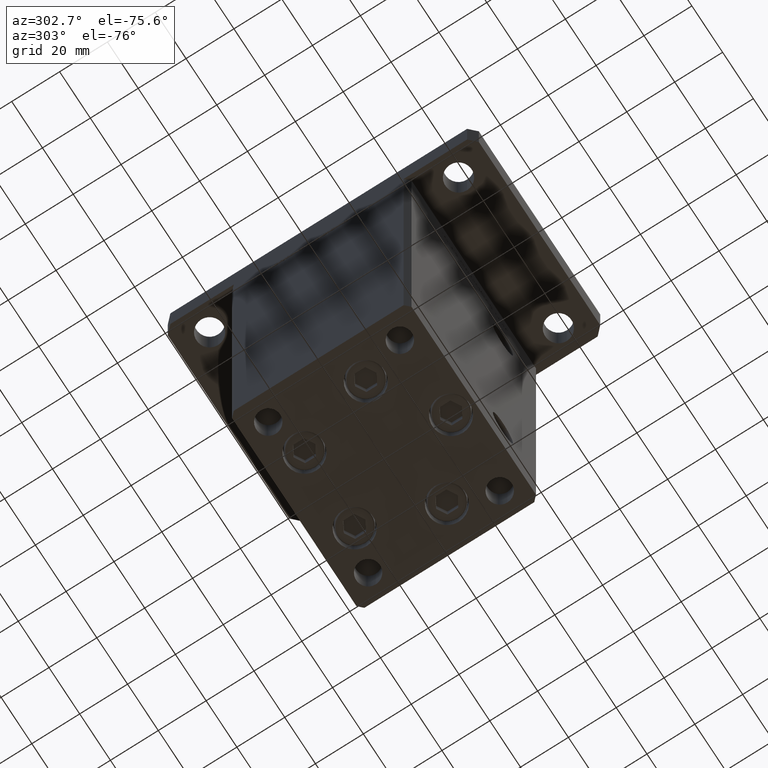
[diagram: clean part render]
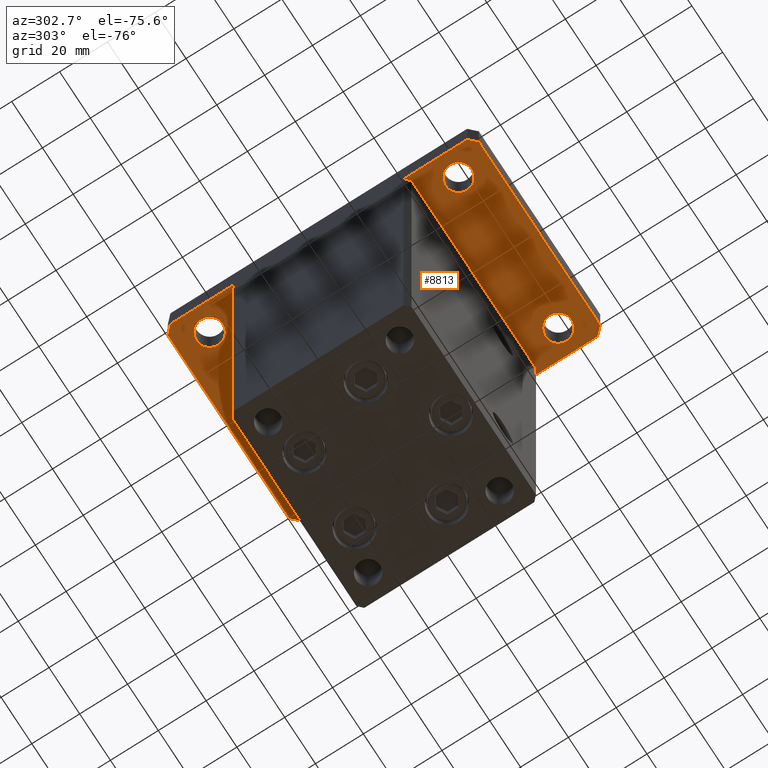
[diagram: same view with one face highlighted and labeled with its STEP entity id]
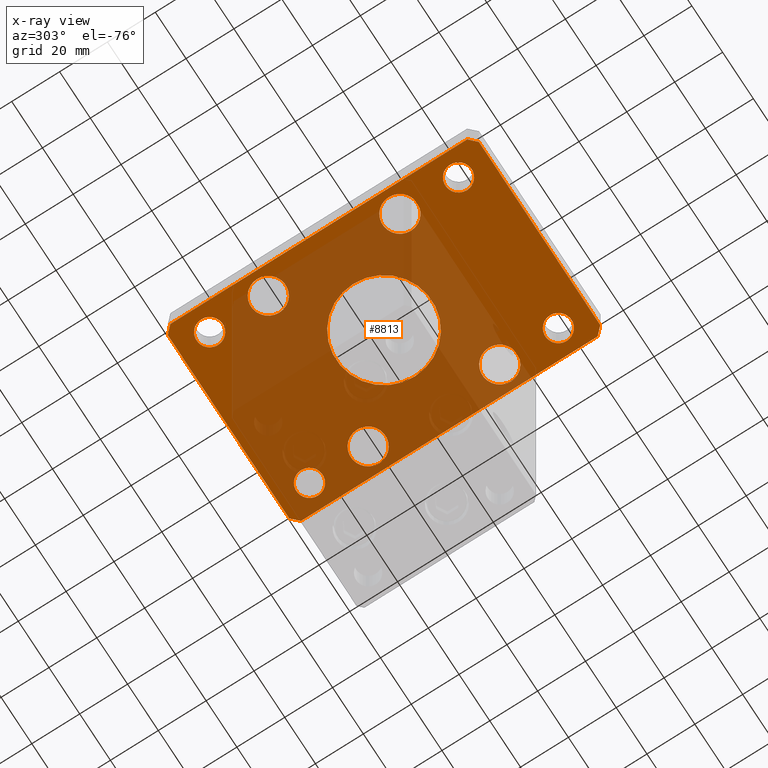
[diagram: x-ray of the same camera — body ghosted, the highlighted face saturated]
A machine part, auxiliary view. The second image highlights one B-rep face of the part: STEP entity #8813.
The next image is the same camera in x-ray: the body ghosted, the highlighted face saturated — about 61% of this face is hidden behind the body in this view.
In plain terms, the highlighted planar face has unit normal (0, 0, 1).
Its self-contained STEP definition (entity closure, byte-faithful):
#134 = DIRECTION ( 'NONE',  ( 1.000000000000000000, 0.000000000000000000, 0.000000000000000000 ) ) ;
#331 = VERTEX_POINT ( 'NONE', #53057 ) ;
#430 = VERTEX_POINT ( 'NONE', #1483 ) ;
#678 = VECTOR ( 'NONE', #45054, 1000.000000000000000 ) ;
#690 = EDGE_CURVE ( 'NONE', #32757, #8125, #31821, .T. ) ;
#725 = CARTESIAN_POINT ( 'NONE',  ( 39.50000000000001421, -64.99999999999988631, 0.000000000000000000 ) ) ;
#1048 = AXIS2_PLACEMENT_3D ( 'NONE', #25589, #42103, #4969 ) ;
#1280 = ORIENTED_EDGE ( 'NONE', *, *, #42246, .F. ) ;
#1483 = CARTESIAN_POINT ( 'NONE',  ( 39.50000000000002842, 65.00000000000002842, 0.000000000000000000 ) ) ;
#1509 = VERTEX_POINT ( 'NONE', #42147 ) ;
#2263 = FACE_BOUND ( 'NONE', #39259, .T. ) ;
#2525 = ORIENTED_EDGE ( 'NONE', *, *, #50738, .T. ) ;
#2554 = AXIS2_PLACEMENT_3D ( 'NONE', #4193, #36207, #52762 ) ;
#2556 = LINE ( 'NONE', #14218, #23423 ) ;
#2634 = CARTESIAN_POINT ( 'NONE',  ( -39.75000000000000000, -27.50000000000000000, 0.000000000000000000 ) ) ;
#2687 = ORIENTED_EDGE ( 'NONE', *, *, #24503, .T. ) ;
#3317 = LINE ( 'NONE', #19880, #678 ) ;
#3707 = DIRECTION ( 'NONE',  ( 0.000000000000000000, 0.000000000000000000, 1.000000000000000000 ) ) ;
#3758 = DIRECTION ( 'NONE',  ( 0.000000000000000000, 0.000000000000000000, -1.000000000000000000 ) ) ;
#4193 = CARTESIAN_POINT ( 'NONE',  ( 32.50000000000000000, 27.50000000000000000, 0.000000000000000000 ) ) ;
#4607 = CARTESIAN_POINT ( 'NONE',  ( -20.00000000000000000, 0.000000000000000000, 0.000000000000000000 ) ) ;
#4910 = VERTEX_POINT ( 'NONE', #19068 ) ;
#4969 = DIRECTION ( 'NONE',  ( 1.000000000000000000, 0.000000000000000000, 0.000000000000000000 ) ) ;
#5033 = ORIENTED_EDGE ( 'NONE', *, *, #16510, .T. ) ;
#5078 = EDGE_LOOP ( 'NONE', ( #35044, #8000 ) ) ;
#5131 = ORIENTED_EDGE ( 'NONE', *, *, #17590, .T. ) ;
#5352 = CIRCLE ( 'NONE', #33920, 7.249999999999999112 ) ;
#5522 = CARTESIAN_POINT ( 'NONE',  ( 0.000000000000000000, 0.000000000000000000, 0.000000000000000000 ) ) ;
#6024 = VERTEX_POINT ( 'NONE', #16299 ) ;
#6394 = VERTEX_POINT ( 'NONE', #41781 ) ;
#6704 = AXIS2_PLACEMENT_3D ( 'NONE', #10692, #35367, #47844 ) ;
#6883 = DIRECTION ( 'NONE',  ( -0.7071067811865417996, 0.7071067811865532349, 0.000000000000000000 ) ) ;
#6981 = EDGE_CURVE ( 'NONE', #430, #26760, #3317, .T. ) ;
#7316 = EDGE_LOOP ( 'NONE', ( #33860, #44421 ) ) ;
#7590 = CARTESIAN_POINT ( 'NONE',  ( 25.25000000000000000, -27.50000000000000000, 0.000000000000000000 ) ) ;
#7625 = ORIENTED_EDGE ( 'NONE', *, *, #15574, .F. ) ;
#7893 = CIRCLE ( 'NONE', #17559, 5.499999999999994671 ) ;
#7979 = CIRCLE ( 'NONE', #1048, 7.249999999999999112 ) ;
#8000 = ORIENTED_EDGE ( 'NONE', *, *, #11899, .T. ) ;
#8125 = VERTEX_POINT ( 'NONE', #4607 ) ;
#8534 = CARTESIAN_POINT ( 'NONE',  ( 32.49999999999997868, -52.00000000000000711, 0.000000000000000000 ) ) ;
#8789 = FACE_BOUND ( 'NONE', #7316, .T. ) ;
#8795 = VECTOR ( 'NONE', #36442, 1000.000000000000000 ) ;
#8813 = ADVANCED_FACE ( 'NONE', ( #31803, #11178, #2263, #19610, #18817, #23680, #40188, #8789, #9320, #34007 ), #33740, .F. ) ;
#9124 = CARTESIAN_POINT ( 'NONE',  ( -32.49999999999997868, -52.00000000000000711, 0.000000000000000000 ) ) ;
#9178 = DIRECTION ( 'NONE',  ( 0.000000000000000000, 0.000000000000000000, 1.000000000000000000 ) ) ;
#9308 = DIRECTION ( 'NONE',  ( 0.000000000000000000, 0.000000000000000000, 1.000000000000000000 ) ) ;
#9320 = FACE_BOUND ( 'NONE', #35638, .T. ) ;
#9485 = VERTEX_POINT ( 'NONE', #725 ) ;
#9535 = CIRCLE ( 'NONE', #32078, 5.499999999999994671 ) ;
#9716 = CARTESIAN_POINT ( 'NONE',  ( -39.75000000000000711, 27.50000000000000000, 0.000000000000000000 ) ) ;
#9767 = AXIS2_PLACEMENT_3D ( 'NONE', #46856, #9178, #51208 ) ;
#9776 = DIRECTION ( 'NONE',  ( 0.000000000000000000, 0.000000000000000000, 1.000000000000000000 ) ) ;
#10617 = DIRECTION ( 'NONE',  ( 0.000000000000000000, 1.000000000000000000, 0.000000000000000000 ) ) ;
#10692 = CARTESIAN_POINT ( 'NONE',  ( 0.000000000000000000, 0.000000000000000000, 0.000000000000000000 ) ) ;
#10778 = LINE ( 'NONE', #47111, #47794 ) ;
#10847 = ORIENTED_EDGE ( 'NONE', *, *, #12930, .F. ) ;
#11178 = FACE_OUTER_BOUND ( 'NONE', #24397, .T. ) ;
#11181 = CARTESIAN_POINT ( 'NONE',  ( -39.50000000000000000, -65.00000000000000000, 0.000000000000000000 ) ) ;
#11189 = DIRECTION ( 'NONE',  ( 0.000000000000000000, 0.000000000000000000, 1.000000000000000000 ) ) ;
#11642 = CARTESIAN_POINT ( 'NONE',  ( -27.00000000000000711, 52.00000000000000000, 0.000000000000000000 ) ) ;
#11899 = EDGE_CURVE ( 'NONE', #37040, #42308, #44172, .T. ) ;
#11963 = ORIENTED_EDGE ( 'NONE', *, *, #16030, .T. ) ;
#12095 = DIRECTION ( 'NONE',  ( 1.000000000000000000, 0.000000000000000000, 0.000000000000000000 ) ) ;
#12496 = CIRCLE ( 'NONE', #39329, 5.499999999999991118 ) ;
#12930 = EDGE_CURVE ( 'NONE', #4910, #20563, #21387, .T. ) ;
#13854 = CARTESIAN_POINT ( 'NONE',  ( -32.50000000000000711, 27.50000000000000000, 0.000000000000000000 ) ) ;
#14047 = DIRECTION ( 'NONE',  ( 0.000000000000000000, 0.000000000000000000, 1.000000000000000000 ) ) ;
#14129 = DIRECTION ( 'NONE',  ( 1.000000000000000000, 0.000000000000000000, 0.000000000000000000 ) ) ;
#14218 = CARTESIAN_POINT ( 'NONE',  ( 42.50000000000000000, 62.00000000000000711, 0.000000000000000000 ) ) ;
#14307 = DIRECTION ( 'NONE',  ( -0.7071067811865466846, -0.7071067811865483499, 0.000000000000000000 ) ) ;
#15193 = EDGE_CURVE ( 'NONE', #26760, #51276, #10778, .T. ) ;
#15203 = CARTESIAN_POINT ( 'NONE',  ( 42.50000000000000000, -61.99999999999988631, 0.000000000000000000 ) ) ;
#15574 = EDGE_CURVE ( 'NONE', #51276, #4910, #20455, .T. ) ;
#15655 = EDGE_CURVE ( 'NONE', #48986, #22883, #39107, .T. ) ;
#15804 = VECTOR ( 'NONE', #46730, 1000.000000000000000 ) ;
#15945 = EDGE_CURVE ( 'NONE', #20592, #6024, #5352, .T. ) ;
#16030 = EDGE_CURVE ( 'NONE', #6394, #1509, #22674, .T. ) ;
#16299 = CARTESIAN_POINT ( 'NONE',  ( 39.75000000000000000, 27.50000000000000000, 0.000000000000000000 ) ) ;
#16384 = CARTESIAN_POINT ( 'NONE',  ( -32.50000000000000000, 52.00000000000000000, 0.000000000000000000 ) ) ;
#16510 = EDGE_CURVE ( 'NONE', #35476, #37041, #7979, .T. ) ;
#16967 = CIRCLE ( 'NONE', #18682, 7.249999999999999112 ) ;
#17214 = DIRECTION ( 'NONE',  ( 0.000000000000000000, 0.000000000000000000, 1.000000000000000000 ) ) ;
#17449 = CIRCLE ( 'NONE', #51238, 5.499999999999994671 ) ;
#17559 = AXIS2_PLACEMENT_3D ( 'NONE', #16384, #9308, #38048 ) ;
#17590 = EDGE_CURVE ( 'NONE', #43387, #31989, #7893, .T. ) ;
#17652 = DIRECTION ( 'NONE',  ( 1.000000000000000000, 0.000000000000000000, 0.000000000000000000 ) ) ;
#17854 = EDGE_CURVE ( 'NONE', #32839, #331, #46108, .T. ) ;
#18030 = VECTOR ( 'NONE', #10617, 1000.000000000000000 ) ;
#18615 = EDGE_CURVE ( 'NONE', #20563, #9485, #29670, .T. ) ;
#18616 = DIRECTION ( 'NONE',  ( 0.000000000000000000, 0.000000000000000000, 1.000000000000000000 ) ) ;
#18682 = AXIS2_PLACEMENT_3D ( 'NONE', #13854, #26066, #14129 ) ;
#18817 = FACE_BOUND ( 'NONE', #52825, .T. ) ;
#18890 = CARTESIAN_POINT ( 'NONE',  ( 32.50000000000000000, -27.50000000000000000, 0.000000000000000000 ) ) ;
#19068 = CARTESIAN_POINT ( 'NONE',  ( -42.49999999999999289, -62.00000000000001421, 0.000000000000000000 ) ) ;
#19610 = FACE_BOUND ( 'NONE', #50780, .T. ) ;
#19820 = CARTESIAN_POINT ( 'NONE',  ( 27.00000000000001421, 51.99999999999999289, 0.000000000000000000 ) ) ;
#19880 = CARTESIAN_POINT ( 'NONE',  ( 39.50000000000002842, 65.00000000000002842, 0.000000000000000000 ) ) ;
#20149 = CARTESIAN_POINT ( 'NONE',  ( -39.50000000000003553, 65.00000000000000000, 0.000000000000000000 ) ) ;
#20455 = LINE ( 'NONE', #36705, #8795 ) ;
#20563 = VERTEX_POINT ( 'NONE', #11181 ) ;
#20576 = DIRECTION ( 'NONE',  ( 0.000000000000000000, 0.000000000000000000, 1.000000000000000000 ) ) ;
#20592 = VERTEX_POINT ( 'NONE', #41511 ) ;
#20808 = AXIS2_PLACEMENT_3D ( 'NONE', #33648, #9776, #38503 ) ;
#21011 = DIRECTION ( 'NONE',  ( 1.000000000000000000, 0.000000000000000000, -0.000000000000000000 ) ) ;
#21387 = LINE ( 'NONE', #50403, #37283 ) ;
#21533 = DIRECTION ( 'NONE',  ( 0.000000000000000000, 0.000000000000000000, 1.000000000000000000 ) ) ;
#22313 = DIRECTION ( 'NONE',  ( 0.000000000000000000, 0.000000000000000000, 1.000000000000000000 ) ) ;
#22674 = CIRCLE ( 'NONE', #28724, 5.499999999999994671 ) ;
#22766 = CARTESIAN_POINT ( 'NONE',  ( 39.75000000000000000, -27.50000000000000000, 0.000000000000000000 ) ) ;
#22883 = VERTEX_POINT ( 'NONE', #45626 ) ;
#23004 = DIRECTION ( 'NONE',  ( 0.000000000000000000, 0.000000000000000000, 1.000000000000000000 ) ) ;
#23270 = CARTESIAN_POINT ( 'NONE',  ( 32.50000000000000000, 27.50000000000000000, 0.000000000000000000 ) ) ;
#23423 = VECTOR ( 'NONE', #6883, 1000.000000000000000 ) ;
#23428 = DIRECTION ( 'NONE',  ( 1.000000000000000000, 0.000000000000000000, 0.000000000000000000 ) ) ;
#23578 = AXIS2_PLACEMENT_3D ( 'NONE', #18890, #18616, #47336 ) ;
#23680 = FACE_BOUND ( 'NONE', #41334, .T. ) ;
#23708 = ORIENTED_EDGE ( 'NONE', *, *, #18615, .F. ) ;
#24228 = ORIENTED_EDGE ( 'NONE', *, *, #40957, .F. ) ;
#24324 = CARTESIAN_POINT ( 'NONE',  ( -32.49999999999997868, -52.00000000000000711, 0.000000000000000000 ) ) ;
#24397 = EDGE_LOOP ( 'NONE', ( #23708, #10847, #7625, #51756, #36164, #30990, #1280, #45715 ) ) ;
#24503 = EDGE_CURVE ( 'NONE', #22883, #48986, #46183, .T. ) ;
#25589 = CARTESIAN_POINT ( 'NONE',  ( -32.50000000000000711, 27.50000000000000000, 0.000000000000000000 ) ) ;
#26066 = DIRECTION ( 'NONE',  ( 0.000000000000000000, 0.000000000000000000, 1.000000000000000000 ) ) ;
#26532 = ORIENTED_EDGE ( 'NONE', *, *, #690, .F. ) ;
#26719 = EDGE_CURVE ( 'NONE', #331, #32839, #12496, .T. ) ;
#26760 = VERTEX_POINT ( 'NONE', #20149 ) ;
#26889 = CARTESIAN_POINT ( 'NONE',  ( 20.00000000000000000, 2.449293598294706513E-15, 0.000000000000000000 ) ) ;
#26894 = CARTESIAN_POINT ( 'NONE',  ( 42.50000000000000000, 62.00000000000000711, 0.000000000000000000 ) ) ;
#27243 = AXIS2_PLACEMENT_3D ( 'NONE', #8534, #17214, #134 ) ;
#27322 = EDGE_CURVE ( 'NONE', #46452, #27636, #50602, .T. ) ;
#27397 = ORIENTED_EDGE ( 'NONE', *, *, #26719, .T. ) ;
#27636 = VERTEX_POINT ( 'NONE', #50504 ) ;
#27658 = CIRCLE ( 'NONE', #2554, 7.249999999999999112 ) ;
#28528 = AXIS2_PLACEMENT_3D ( 'NONE', #5522, #21533, #21011 ) ;
#28655 = ORIENTED_EDGE ( 'NONE', *, *, #46647, .T. ) ;
#28700 = DIRECTION ( 'NONE',  ( 1.000000000000000000, 0.000000000000000000, 0.000000000000000000 ) ) ;
#28724 = AXIS2_PLACEMENT_3D ( 'NONE', #24324, #3707, #12095 ) ;
#29062 = CIRCLE ( 'NONE', #42137, 5.499999999999998224 ) ;
#29225 = CARTESIAN_POINT ( 'NONE',  ( -38.00000000000000000, 52.00000000000000000, 0.000000000000000000 ) ) ;
#29231 = CARTESIAN_POINT ( 'NONE',  ( -32.50000000000000000, 52.00000000000000000, 0.000000000000000000 ) ) ;
#29349 = CARTESIAN_POINT ( 'NONE',  ( -25.25000000000000711, 27.50000000000000000, 0.000000000000000000 ) ) ;
#29670 = LINE ( 'NONE', #50003, #15804 ) ;
#30109 = CARTESIAN_POINT ( 'NONE',  ( -32.50000000000000000, -27.50000000000000000, 0.000000000000000000 ) ) ;
#30269 = DIRECTION ( 'NONE',  ( 0.000000000000000000, 0.000000000000000000, 1.000000000000000000 ) ) ;
#30586 = DIRECTION ( 'NONE',  ( 1.000000000000000000, 0.000000000000000000, 0.000000000000000000 ) ) ;
#30721 = CARTESIAN_POINT ( 'NONE',  ( 32.49999999999997868, -52.00000000000000711, 0.000000000000000000 ) ) ;
#30953 = LINE ( 'NONE', #47765, #18030 ) ;
#30990 = ORIENTED_EDGE ( 'NONE', *, *, #47926, .F. ) ;
#31724 = EDGE_CURVE ( 'NONE', #37041, #35476, #16967, .T. ) ;
#31803 = FACE_BOUND ( 'NONE', #49446, .T. ) ;
#31821 = CIRCLE ( 'NONE', #6704, 20.00000000000000000 ) ;
#31989 = VERTEX_POINT ( 'NONE', #11642 ) ;
#32078 = AXIS2_PLACEMENT_3D ( 'NONE', #9124, #30269, #33276 ) ;
#32757 = VERTEX_POINT ( 'NONE', #26889 ) ;
#32839 = VERTEX_POINT ( 'NONE', #19820 ) ;
#32896 = LINE ( 'NONE', #49426, #50387 ) ;
#33276 = DIRECTION ( 'NONE',  ( 1.000000000000000000, 0.000000000000000000, 0.000000000000000000 ) ) ;
#33648 = CARTESIAN_POINT ( 'NONE',  ( 32.50000000000000000, -27.50000000000000000, 0.000000000000000000 ) ) ;
#33740 = PLANE ( 'NONE',  #28528 ) ;
#33860 = ORIENTED_EDGE ( 'NONE', *, *, #15945, .T. ) ;
#33920 = AXIS2_PLACEMENT_3D ( 'NONE', #23270, #23004, #48196 ) ;
#34007 = FACE_BOUND ( 'NONE', #53528, .T. ) ;
#34039 = EDGE_CURVE ( 'NONE', #27636, #46452, #29062, .T. ) ;
#35044 = ORIENTED_EDGE ( 'NONE', *, *, #52411, .T. ) ;
#35367 = DIRECTION ( 'NONE',  ( 0.000000000000000000, 0.000000000000000000, -1.000000000000000000 ) ) ;
#35449 = AXIS2_PLACEMENT_3D ( 'NONE', #53650, #3758, #45227 ) ;
#35476 = VERTEX_POINT ( 'NONE', #9716 ) ;
#35638 = EDGE_LOOP ( 'NONE', ( #5033, #47476 ) ) ;
#36067 = ORIENTED_EDGE ( 'NONE', *, *, #15655, .T. ) ;
#36164 = ORIENTED_EDGE ( 'NONE', *, *, #6981, .F. ) ;
#36207 = DIRECTION ( 'NONE',  ( 0.000000000000000000, 0.000000000000000000, 1.000000000000000000 ) ) ;
#36442 = DIRECTION ( 'NONE',  ( 2.238352872228137677E-16, -1.000000000000000000, 0.000000000000000000 ) ) ;
#36705 = CARTESIAN_POINT ( 'NONE',  ( -42.50000000000002132, 62.00000000000000711, 0.000000000000000000 ) ) ;
#37040 = VERTEX_POINT ( 'NONE', #22766 ) ;
#37041 = VERTEX_POINT ( 'NONE', #29349 ) ;
#37283 = VECTOR ( 'NONE', #38179, 1000.000000000000000 ) ;
#37284 = CIRCLE ( 'NONE', #23578, 7.249999999999999112 ) ;
#37742 = DIRECTION ( 'NONE',  ( 0.7071067811865459074, 0.7071067811865491270, 0.000000000000000000 ) ) ;
#38048 = DIRECTION ( 'NONE',  ( 1.000000000000000000, 0.000000000000000000, 0.000000000000000000 ) ) ;
#38179 = DIRECTION ( 'NONE',  ( 0.7071067811865483499, -0.7071067811865466846, 0.000000000000000000 ) ) ;
#38503 = DIRECTION ( 'NONE',  ( 1.000000000000000000, 0.000000000000000000, 0.000000000000000000 ) ) ;
#39107 = CIRCLE ( 'NONE', #46918, 7.249999999999999112 ) ;
#39259 = EDGE_LOOP ( 'NONE', ( #11963, #28655 ) ) ;
#39329 = AXIS2_PLACEMENT_3D ( 'NONE', #44267, #11189, #23428 ) ;
#39388 = DIRECTION ( 'NONE',  ( 1.000000000000000000, 0.000000000000000000, 0.000000000000000000 ) ) ;
#40139 = ORIENTED_EDGE ( 'NONE', *, *, #17854, .T. ) ;
#40188 = FACE_BOUND ( 'NONE', #5078, .T. ) ;
#40957 = EDGE_CURVE ( 'NONE', #8125, #32757, #52748, .T. ) ;
#41334 = EDGE_LOOP ( 'NONE', ( #36067, #2687 ) ) ;
#41511 = CARTESIAN_POINT ( 'NONE',  ( 25.25000000000000000, 27.50000000000000000, 0.000000000000000000 ) ) ;
#41781 = CARTESIAN_POINT ( 'NONE',  ( -37.99999999999997868, -52.00000000000000711, 0.000000000000000000 ) ) ;
#42103 = DIRECTION ( 'NONE',  ( 0.000000000000000000, 0.000000000000000000, 1.000000000000000000 ) ) ;
#42137 = AXIS2_PLACEMENT_3D ( 'NONE', #30721, #22313, #39388 ) ;
#42147 = CARTESIAN_POINT ( 'NONE',  ( -26.99999999999998579, -52.00000000000000711, 0.000000000000000000 ) ) ;
#42224 = VERTEX_POINT ( 'NONE', #26894 ) ;
#42246 = EDGE_CURVE ( 'NONE', #44214, #42224, #30953, .T. ) ;
#42308 = VERTEX_POINT ( 'NONE', #7590 ) ;
#43387 = VERTEX_POINT ( 'NONE', #29225 ) ;
#44172 = CIRCLE ( 'NONE', #20808, 7.249999999999999112 ) ;
#44214 = VERTEX_POINT ( 'NONE', #15203 ) ;
#44267 = CARTESIAN_POINT ( 'NONE',  ( 32.50000000000000000, 51.99999999999999289, 0.000000000000000000 ) ) ;
#44421 = ORIENTED_EDGE ( 'NONE', *, *, #44959, .T. ) ;
#44440 = AXIS2_PLACEMENT_3D ( 'NONE', #51200, #14047, #30586 ) ;
#44959 = EDGE_CURVE ( 'NONE', #6024, #20592, #27658, .T. ) ;
#45054 = DIRECTION ( 'NONE',  ( -1.000000000000000000, -3.513364001978340512E-16, 0.000000000000000000 ) ) ;
#45227 = DIRECTION ( 'NONE',  ( -1.000000000000000000, 0.000000000000000000, 0.000000000000000000 ) ) ;
#45626 = CARTESIAN_POINT ( 'NONE',  ( -25.25000000000000000, -27.50000000000000000, 0.000000000000000000 ) ) ;
#45715 = ORIENTED_EDGE ( 'NONE', *, *, #52037, .F. ) ;
#46108 = CIRCLE ( 'NONE', #9767, 5.499999999999991118 ) ;
#46183 = CIRCLE ( 'NONE', #44440, 7.249999999999999112 ) ;
#46452 = VERTEX_POINT ( 'NONE', #53376 ) ;
#46647 = EDGE_CURVE ( 'NONE', #1509, #6394, #9535, .T. ) ;
#46730 = DIRECTION ( 'NONE',  ( 1.000000000000000000, 1.405345600791337191E-15, 0.000000000000000000 ) ) ;
#46856 = CARTESIAN_POINT ( 'NONE',  ( 32.50000000000000000, 51.99999999999999289, 0.000000000000000000 ) ) ;
#46918 = AXIS2_PLACEMENT_3D ( 'NONE', #30109, #49718, #17652 ) ;
#47111 = CARTESIAN_POINT ( 'NONE',  ( -39.50000000000003553, 65.00000000000000000, 0.000000000000000000 ) ) ;
#47336 = DIRECTION ( 'NONE',  ( 1.000000000000000000, 0.000000000000000000, 0.000000000000000000 ) ) ;
#47476 = ORIENTED_EDGE ( 'NONE', *, *, #31724, .T. ) ;
#47590 = ORIENTED_EDGE ( 'NONE', *, *, #27322, .T. ) ;
#47765 = CARTESIAN_POINT ( 'NONE',  ( 42.50000000000000000, -61.99999999999988631, 0.000000000000000000 ) ) ;
#47794 = VECTOR ( 'NONE', #14307, 1000.000000000000000 ) ;
#47844 = DIRECTION ( 'NONE',  ( -1.000000000000000000, 0.000000000000000000, 0.000000000000000000 ) ) ;
#47926 = EDGE_CURVE ( 'NONE', #42224, #430, #2556, .T. ) ;
#48196 = DIRECTION ( 'NONE',  ( 1.000000000000000000, 0.000000000000000000, 0.000000000000000000 ) ) ;
#48313 = CARTESIAN_POINT ( 'NONE',  ( -42.50000000000002132, 62.00000000000000711, 0.000000000000000000 ) ) ;
#48986 = VERTEX_POINT ( 'NONE', #2634 ) ;
#49426 = CARTESIAN_POINT ( 'NONE',  ( 39.50000000000001421, -64.99999999999988631, 0.000000000000000000 ) ) ;
#49446 = EDGE_LOOP ( 'NONE', ( #24228, #26532 ) ) ;
#49718 = DIRECTION ( 'NONE',  ( 0.000000000000000000, 0.000000000000000000, 1.000000000000000000 ) ) ;
#50003 = CARTESIAN_POINT ( 'NONE',  ( -39.50000000000000000, -65.00000000000000000, 0.000000000000000000 ) ) ;
#50387 = VECTOR ( 'NONE', #37742, 1000.000000000000114 ) ;
#50403 = CARTESIAN_POINT ( 'NONE',  ( -42.49999999999999289, -62.00000000000001421, 0.000000000000000000 ) ) ;
#50504 = CARTESIAN_POINT ( 'NONE',  ( 26.99999999999998579, -52.00000000000000711, 0.000000000000000000 ) ) ;
#50602 = CIRCLE ( 'NONE', #27243, 5.499999999999998224 ) ;
#50738 = EDGE_CURVE ( 'NONE', #31989, #43387, #17449, .T. ) ;
#50780 = EDGE_LOOP ( 'NONE', ( #40139, #27397 ) ) ;
#50910 = ORIENTED_EDGE ( 'NONE', *, *, #34039, .T. ) ;
#51200 = CARTESIAN_POINT ( 'NONE',  ( -32.50000000000000000, -27.50000000000000000, 0.000000000000000000 ) ) ;
#51208 = DIRECTION ( 'NONE',  ( 1.000000000000000000, 0.000000000000000000, 0.000000000000000000 ) ) ;
#51238 = AXIS2_PLACEMENT_3D ( 'NONE', #29231, #20576, #28700 ) ;
#51276 = VERTEX_POINT ( 'NONE', #48313 ) ;
#51756 = ORIENTED_EDGE ( 'NONE', *, *, #15193, .F. ) ;
#52037 = EDGE_CURVE ( 'NONE', #9485, #44214, #32896, .T. ) ;
#52411 = EDGE_CURVE ( 'NONE', #42308, #37040, #37284, .T. ) ;
#52748 = CIRCLE ( 'NONE', #35449, 20.00000000000000000 ) ;
#52762 = DIRECTION ( 'NONE',  ( 1.000000000000000000, 0.000000000000000000, 0.000000000000000000 ) ) ;
#52825 = EDGE_LOOP ( 'NONE', ( #5131, #2525 ) ) ;
#53057 = CARTESIAN_POINT ( 'NONE',  ( 37.99999999999999289, 51.99999999999999289, 0.000000000000000000 ) ) ;
#53376 = CARTESIAN_POINT ( 'NONE',  ( 37.99999999999997868, -52.00000000000000711, 0.000000000000000000 ) ) ;
#53528 = EDGE_LOOP ( 'NONE', ( #50910, #47590 ) ) ;
#53650 = CARTESIAN_POINT ( 'NONE',  ( 0.000000000000000000, 0.000000000000000000, 0.000000000000000000 ) ) ;